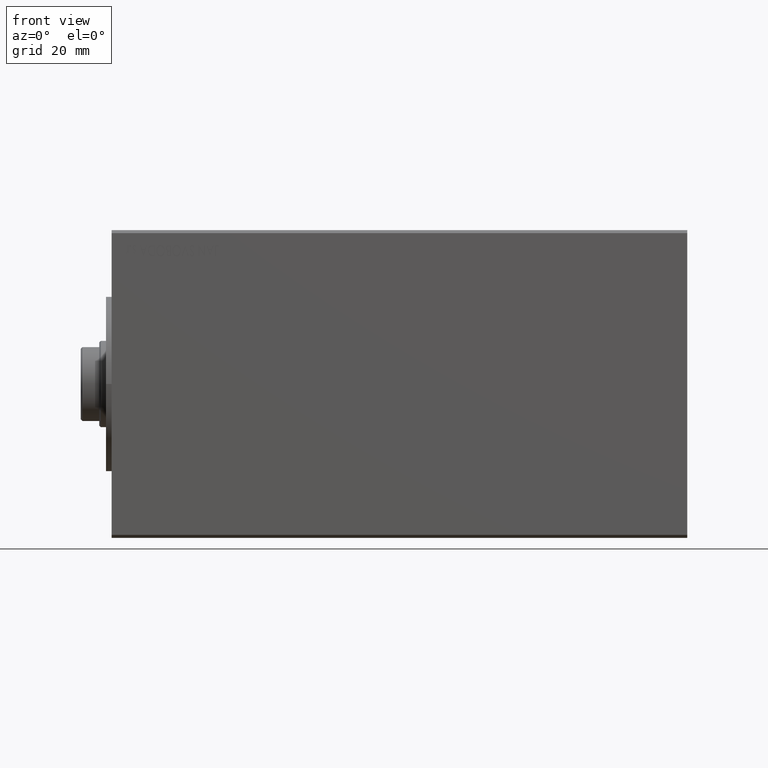
[diagram: clean part render]
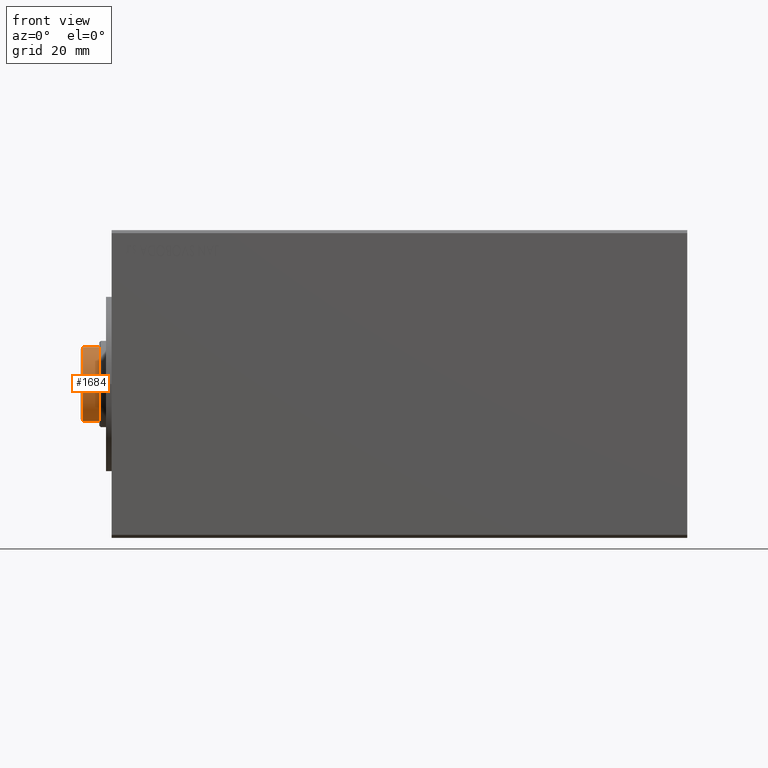
[diagram: same view with one face highlighted and labeled with its STEP entity id]
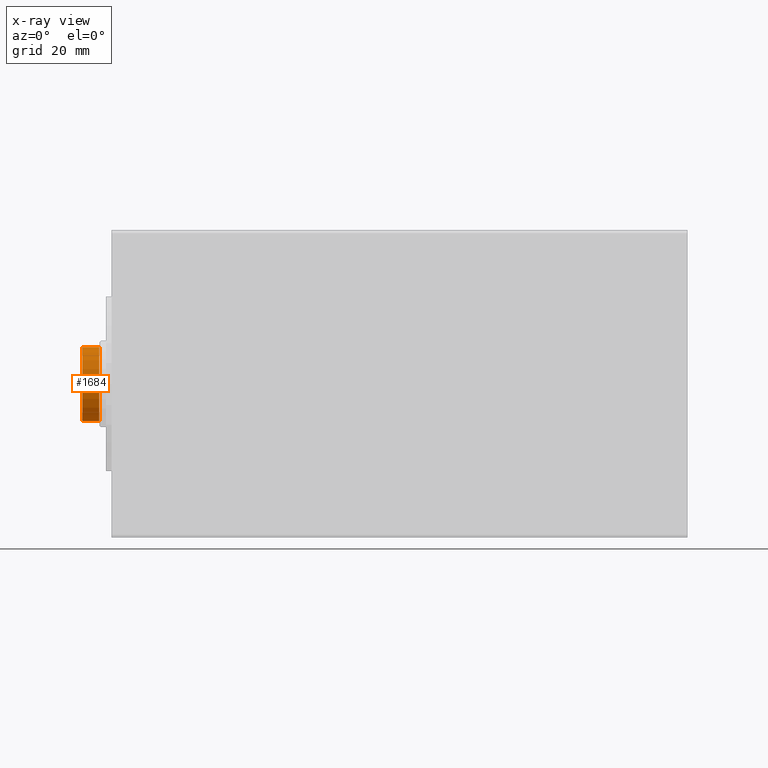
[diagram: x-ray of the same camera — body ghosted, the highlighted face saturated]
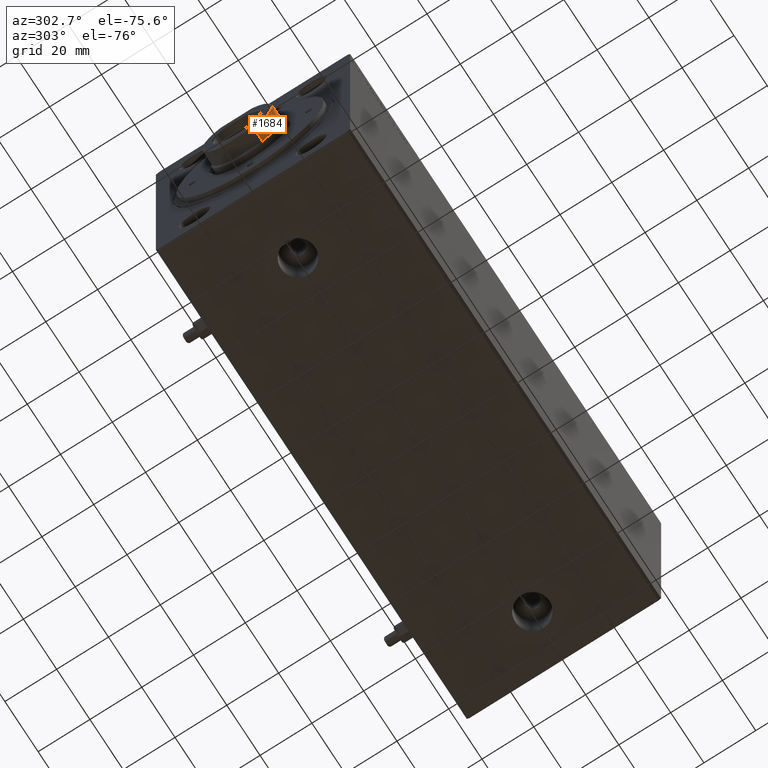
[diagram: same view with one face highlighted and labeled with its STEP entity id]
A machine part, front view. The second image highlights one B-rep face of the part: STEP entity #1684.
The next image is the same camera in x-ray: the body ghosted, the highlighted face saturated — about 0% of this face is hidden behind the body in this view.
A second angle (auxiliary view) of the same face is appended — the face is thin or edge-on in the first view.
In plain terms, the highlighted cylindrical surface (partial cylindrical patch) has radius 13.5 mm, axis along (1, -0, -0).
Its self-contained STEP definition (entity closure, byte-faithful):
#243 = ORIENTED_EDGE ( 'NONE', *, *, #42356, .F. ) ;
#592 = EDGE_LOOP ( 'NONE', ( #243, #16193, #44965, #38181 ) ) ;
#757 = DIRECTION ( 'NONE',  ( -0.000000000000000000, -0.000000000000000000, -1.000000000000000000 ) ) ;
#1684 = ADVANCED_FACE ( 'NONE', ( #4179 ), #22151, .T. ) ;
#4179 = FACE_OUTER_BOUND ( 'NONE', #592, .T. ) ;
#4397 = DIRECTION ( 'NONE',  ( 0.000000000000000000, 0.000000000000000000, -1.000000000000000000 ) ) ;
#4406 = DIRECTION ( 'NONE',  ( -1.000000000000000000, 0.000000000000000000, 0.000000000000000000 ) ) ;
#4898 = CIRCLE ( 'NONE', #30362, 13.50000000000001243 ) ;
#5306 = EDGE_CURVE ( 'NONE', #9009, #21916, #35624, .T. ) ;
#9009 = VERTEX_POINT ( 'NONE', #26946 ) ;
#10642 = DIRECTION ( 'NONE',  ( -0.000000000000000000, -0.000000000000000000, -1.000000000000000000 ) ) ;
#10768 = VECTOR ( 'NONE', #757, 1000.000000000000000 ) ;
#11244 = DIRECTION ( 'NONE',  ( -0.000000000000000000, -0.000000000000000000, -1.000000000000000000 ) ) ;
#11687 = DIRECTION ( 'NONE',  ( 1.000000000000000000, 0.000000000000000000, 0.000000000000000000 ) ) ;
#12859 = CARTESIAN_POINT ( 'NONE',  ( -12.00000000000000000, -6.184658438426517968, 173.1999999999999886 ) ) ;
#14659 = CARTESIAN_POINT ( 'NONE',  ( 0.000000000000000000, 0.000000000000000000, 179.1999999999999886 ) ) ;
#15113 = DIRECTION ( 'NONE',  ( 0.000000000000000000, 0.000000000000000000, 1.000000000000000000 ) ) ;
#15345 = CARTESIAN_POINT ( 'NONE',  ( 0.000000000000000000, 0.000000000000000000, 173.1999999999999886 ) ) ;
#16011 = AXIS2_PLACEMENT_3D ( 'NONE', #15345, #15113, #18305 ) ;
#16193 = ORIENTED_EDGE ( 'NONE', *, *, #32978, .T. ) ;
#18237 = CARTESIAN_POINT ( 'NONE',  ( 12.00000000000000000, -6.184658438426516192, 178.6999999999999886 ) ) ;
#18305 = DIRECTION ( 'NONE',  ( 1.000000000000000000, 0.000000000000000000, 0.000000000000000000 ) ) ;
#21916 = VERTEX_POINT ( 'NONE', #12859 ) ;
#22151 = CYLINDRICAL_SURFACE ( 'NONE', #24472, 13.50000000000001243 ) ;
#24472 = AXIS2_PLACEMENT_3D ( 'NONE', #14659, #11244, #4406 ) ;
#25169 = VERTEX_POINT ( 'NONE', #25373 ) ;
#25373 = CARTESIAN_POINT ( 'NONE',  ( 12.00000000000000000, -6.184658438426517968, 173.1999999999999886 ) ) ;
#25555 = CARTESIAN_POINT ( 'NONE',  ( 0.000000000000000000, 0.000000000000000000, 178.6999999999999886 ) ) ;
#26946 = CARTESIAN_POINT ( 'NONE',  ( -12.00000000000000000, -6.184658438426516192, 178.6999999999999886 ) ) ;
#27943 = LINE ( 'NONE', #41845, #43607 ) ;
#29241 = CARTESIAN_POINT ( 'NONE',  ( -12.00000000000000000, -6.184658438426516192, 179.1999999999999886 ) ) ;
#30362 = AXIS2_PLACEMENT_3D ( 'NONE', #25555, #4397, #11687 ) ;
#32978 = EDGE_CURVE ( 'NONE', #41843, #9009, #4898, .T. ) ;
#34910 = CIRCLE ( 'NONE', #16011, 13.50000000000001243 ) ;
#35624 = LINE ( 'NONE', #29241, #10768 ) ;
#38181 = ORIENTED_EDGE ( 'NONE', *, *, #43297, .T. ) ;
#41843 = VERTEX_POINT ( 'NONE', #18237 ) ;
#41845 = CARTESIAN_POINT ( 'NONE',  ( 12.00000000000000000, -6.184658438426516192, 179.1999999999999886 ) ) ;
#42356 = EDGE_CURVE ( 'NONE', #41843, #25169, #27943, .T. ) ;
#43297 = EDGE_CURVE ( 'NONE', #21916, #25169, #34910, .T. ) ;
#43607 = VECTOR ( 'NONE', #10642, 1000.000000000000000 ) ;
#44965 = ORIENTED_EDGE ( 'NONE', *, *, #5306, .T. ) ;